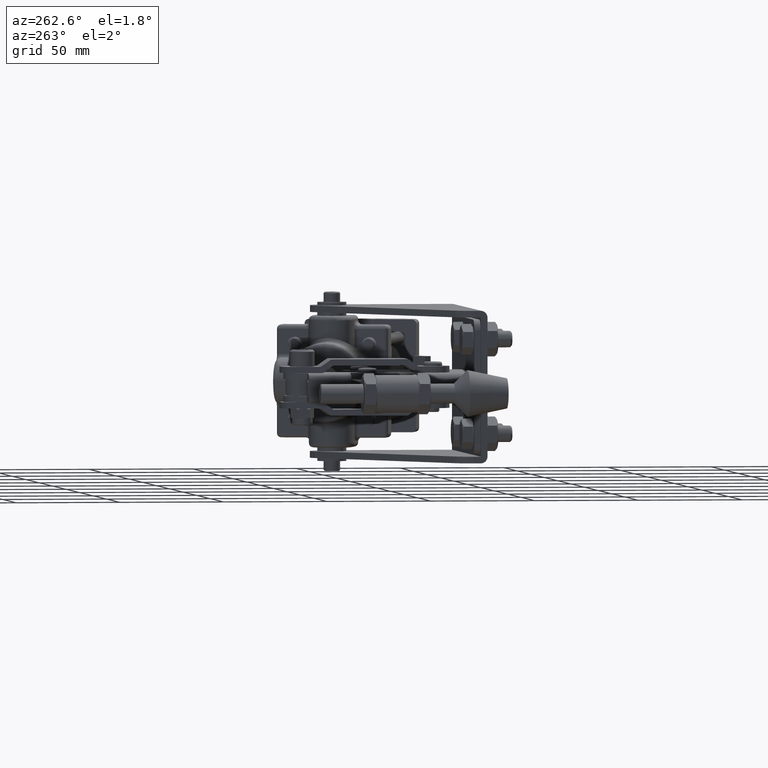
[diagram: clean part render]
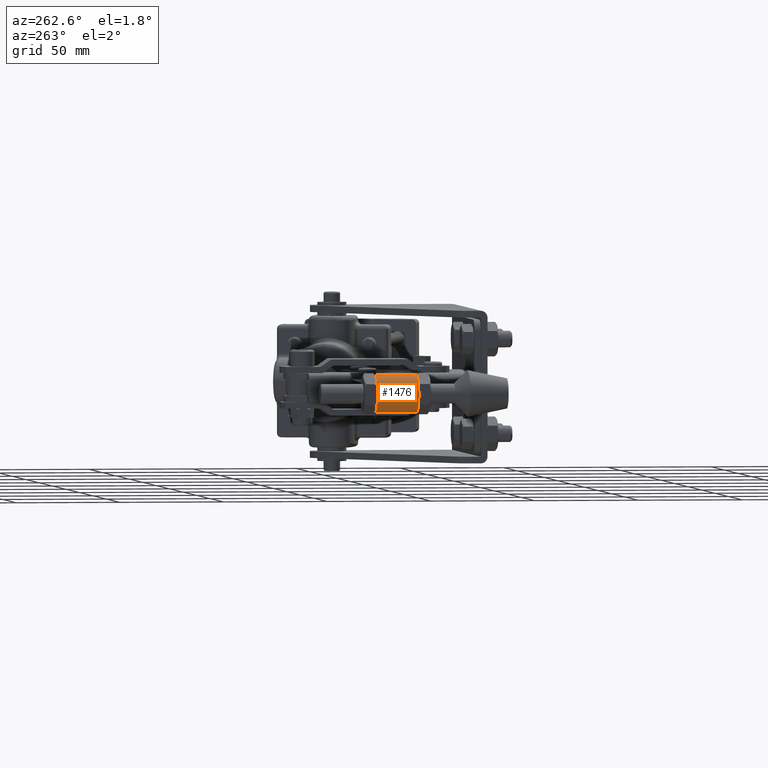
[diagram: same view with one face highlighted and labeled with its STEP entity id]
A machine part, auxiliary view. The second image highlights one B-rep face of the part: STEP entity #1476.
In plain terms, the highlighted cylindrical surface (edge-blend (fillet) strip) has radius 9 mm, axis along (-0, -1, -0).
Its self-contained STEP definition (entity closure, byte-faithful):
#206 = CARTESIAN_POINT ( 'NONE',  ( -145.9513516239763100, 43.49999999999999300, 0.0000000000000000000 ) ) ;
#898 = LINE ( 'NONE', #28320, #19287 ) ;
#1476 = ADVANCED_FACE ( 'NONE', ( #10445 ), #8081, .T. ) ;
#1599 = EDGE_LOOP ( 'NONE', ( #29035, #28848, #30776, #26623 ) ) ;
#2054 = DIRECTION ( 'NONE',  ( -0.0000000000000000000, -1.000000000000000000, -0.0000000000000000000 ) ) ;
#2272 = EDGE_CURVE ( 'NONE', #18625, #3397, #4225, .T. ) ;
#2713 = DIRECTION ( 'NONE',  ( 1.000000000000000000, 0.0000000000000000000, 0.0000000000000000000 ) ) ;
#2830 = VERTEX_POINT ( 'NONE', #19557 ) ;
#3397 = VERTEX_POINT ( 'NONE', #5791 ) ;
#3595 = CARTESIAN_POINT ( 'NONE',  ( -145.9513516239763100, 63.49999999999998600, 9.000000000000001800 ) ) ;
#4225 = LINE ( 'NONE', #17080, #17555 ) ;
#5791 = CARTESIAN_POINT ( 'NONE',  ( -145.9513516239763100, 43.49999999999999300, -9.000000000000001800 ) ) ;
#6167 = DIRECTION ( 'NONE',  ( 0.0000000000000000000, 0.0000000000000000000, -1.000000000000000000 ) ) ;
#6660 = DIRECTION ( 'NONE',  ( 0.0000000000000000000, 1.000000000000000000, 0.0000000000000000000 ) ) ;
#8081 = CYLINDRICAL_SURFACE ( 'NONE', #26630, 9.000000000000001800 ) ;
#8438 = VERTEX_POINT ( 'NONE', #3595 ) ;
#8726 = CARTESIAN_POINT ( 'NONE',  ( -145.9513516239763100, 63.49999999999998600, -9.000000000000001800 ) ) ;
#10445 = FACE_OUTER_BOUND ( 'NONE', #1599, .T. ) ;
#11115 = DIRECTION ( 'NONE',  ( -0.0000000000000000000, -1.000000000000000000, -0.0000000000000000000 ) ) ;
#13618 = AXIS2_PLACEMENT_3D ( 'NONE', #21669, #6660, #24225 ) ;
#14283 = EDGE_CURVE ( 'NONE', #3397, #2830, #14332, .T. ) ;
#14332 = CIRCLE ( 'NONE', #20809, 9.000000000000007100 ) ;
#17080 = CARTESIAN_POINT ( 'NONE',  ( -145.9513516239763100, 63.49999999999998600, -9.000000000000001800 ) ) ;
#17555 = VECTOR ( 'NONE', #2054, 1000.000000000000000 ) ;
#17730 = DIRECTION ( 'NONE',  ( 0.0000000000000000000, 1.000000000000000000, 0.0000000000000000000 ) ) ;
#18625 = VERTEX_POINT ( 'NONE', #8726 ) ;
#19287 = VECTOR ( 'NONE', #30854, 1000.000000000000000 ) ;
#19557 = CARTESIAN_POINT ( 'NONE',  ( -145.9513516239763100, 43.49999999999999300, 9.000000000000001800 ) ) ;
#20809 = AXIS2_PLACEMENT_3D ( 'NONE', #206, #17730, #2713 ) ;
#21669 = CARTESIAN_POINT ( 'NONE',  ( -145.9513516239763100, 63.49999999999998600, 0.0000000000000000000 ) ) ;
#24225 = DIRECTION ( 'NONE',  ( 1.000000000000000000, 0.0000000000000000000, 0.0000000000000000000 ) ) ;
#26173 = CARTESIAN_POINT ( 'NONE',  ( -145.9513516239763100, 63.49999999999998600, 0.0000000000000000000 ) ) ;
#26623 = ORIENTED_EDGE ( 'NONE', *, *, #14283, .T. ) ;
#26630 = AXIS2_PLACEMENT_3D ( 'NONE', #26173, #11115, #6167 ) ;
#26850 = CIRCLE ( 'NONE', #13618, 9.000000000000007100 ) ;
#28320 = CARTESIAN_POINT ( 'NONE',  ( -145.9513516239763100, 63.49999999999998600, 9.000000000000001800 ) ) ;
#28848 = ORIENTED_EDGE ( 'NONE', *, *, #29636, .F. ) ;
#29035 = ORIENTED_EDGE ( 'NONE', *, *, #30101, .F. ) ;
#29636 = EDGE_CURVE ( 'NONE', #18625, #8438, #26850, .T. ) ;
#30101 = EDGE_CURVE ( 'NONE', #8438, #2830, #898, .T. ) ;
#30776 = ORIENTED_EDGE ( 'NONE', *, *, #2272, .T. ) ;
#30854 = DIRECTION ( 'NONE',  ( -0.0000000000000000000, -1.000000000000000000, -0.0000000000000000000 ) ) ;